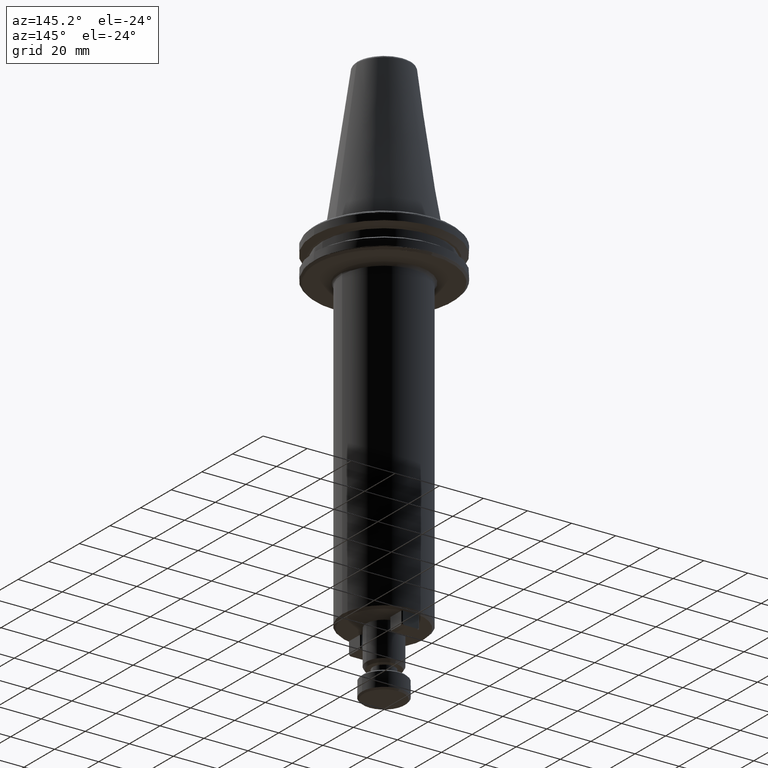
[diagram: clean part render]
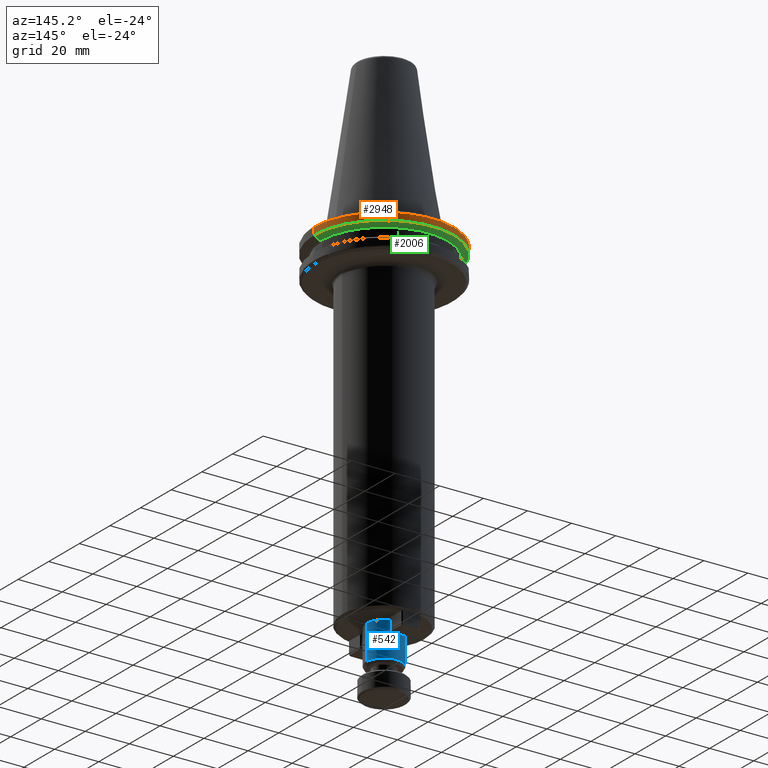
[diagram: same view with three faces highlighted in distinct colors, each labeled with its STEP entity id]
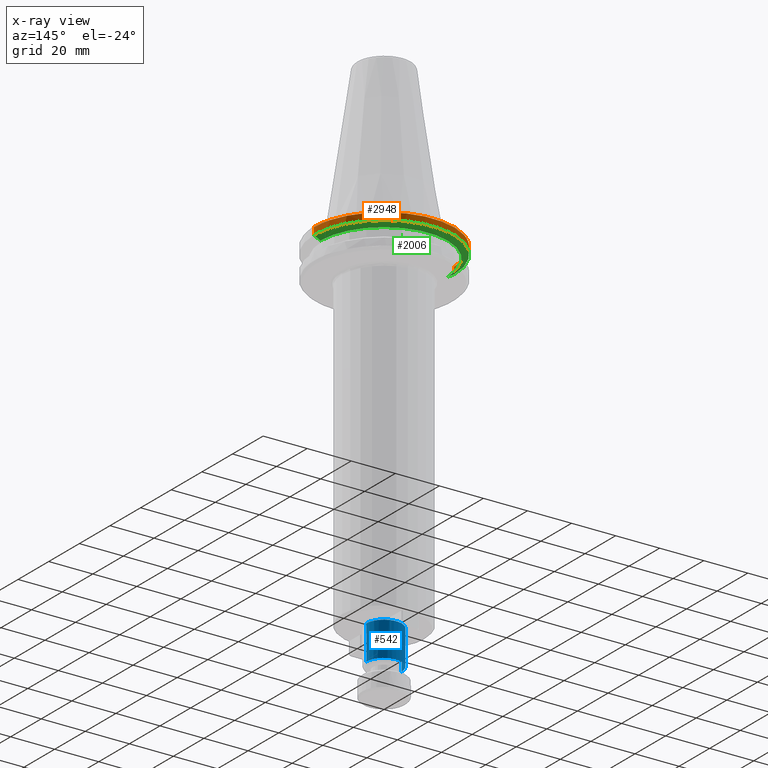
[diagram: x-ray of the same camera — body ghosted, the three highlighted faces saturated]
A machine part, auxiliary view with three faces highlighted in distinct colors.
The next image is the same camera in x-ray (body ghosted, the three faces saturated) — at least one of them is partly hidden behind the body in this view.
Their STEP definitions:

[orange] entity #2948 — the highlighted cylindrical surface (partial cylindrical patch) has radius 31.75 mm, axis along (0, 0, 1).
#28 = CARTESIAN_POINT ( 'NONE',  ( 31.75000000000000000, 0.0000000000000000000, -4.365685424949320200 ) ) ;
#35 = ORIENTED_EDGE ( 'NONE', *, *, #3105, .F. ) ;
#190 = VERTEX_POINT ( 'NONE', #2294 ) ;
#341 = ORIENTED_EDGE ( 'NONE', *, *, #3521, .F. ) ;
#582 = CARTESIAN_POINT ( 'NONE',  ( 0.0000000000000000000, 0.0000000000000000000, -4.365685424949320200 ) ) ;
#747 = CARTESIAN_POINT ( 'NONE',  ( 0.0000000000000000000, 0.0000000000000000000, -4.365685424949236700 ) ) ;
#761 = ORIENTED_EDGE ( 'NONE', *, *, #3818, .F. ) ;
#794 = CIRCLE ( 'NONE', #3931, 31.75000000000000000 ) ;
#831 = VERTEX_POINT ( 'NONE', #1522 ) ;
#875 = VERTEX_POINT ( 'NONE', #3213 ) ;
#890 = CARTESIAN_POINT ( 'NONE',  ( 0.0000000000000000000, 0.0000000000000000000, -4.365685424949320200 ) ) ;
#906 = DIRECTION ( 'NONE',  ( 1.000000000000000000, 0.0000000000000000000, 0.0000000000000000000 ) ) ;
#936 = CARTESIAN_POINT ( 'NONE',  ( 0.0000000000000000000, 0.0000000000000000000, -7.578163357943284800 ) ) ;
#988 = AXIS2_PLACEMENT_3D ( 'NONE', #3435, #1438, #3761 ) ;
#1018 = CARTESIAN_POINT ( 'NONE',  ( 0.0000000000000000000, 0.0000000000000000000, 113.5216080541959500 ) ) ;
#1062 = CIRCLE ( 'NONE', #2954, 31.75000000000000000 ) ;
#1066 = DIRECTION ( 'NONE',  ( 1.000000000000000000, 0.0000000000000000000, 0.0000000000000000000 ) ) ;
#1067 = CIRCLE ( 'NONE', #1709, 31.75000000000000000 ) ;
#1222 = DIRECTION ( 'NONE',  ( 1.000000000000000000, -1.776356839400250500E-015, 0.0000000000000000000 ) ) ;
#1264 = DIRECTION ( 'NONE',  ( 1.000000000000000000, 0.0000000000000000000, -5.463695987328526400E-017 ) ) ;
#1343 = AXIS2_PLACEMENT_3D ( 'NONE', #747, #3053, #1066 ) ;
#1348 = LINE ( 'NONE', #1895, #3891 ) ;
#1378 = VECTOR ( 'NONE', #3896, 1000.000000000000000 ) ;
#1412 = ORIENTED_EDGE ( 'NONE', *, *, #3676, .T. ) ;
#1438 = DIRECTION ( 'NONE',  ( -0.0000000000000000000, -0.0000000000000000000, 1.000000000000000000 ) ) ;
#1463 = VERTEX_POINT ( 'NONE', #3295 ) ;
#1522 = CARTESIAN_POINT ( 'NONE',  ( -31.75000000000000000, 3.888253587292846500E-015, -7.578163357943284800 ) ) ;
#1536 = VERTEX_POINT ( 'NONE', #4087 ) ;
#1582 = CARTESIAN_POINT ( 'NONE',  ( -31.75000000000000000, 3.888253587292846500E-015, 113.5216080541959500 ) ) ;
#1709 = AXIS2_PLACEMENT_3D ( 'NONE', #1878, #4194, #2212 ) ;
#1878 = CARTESIAN_POINT ( 'NONE',  ( 0.0000000000000000000, 0.0000000000000000000, -4.365685424949320200 ) ) ;
#1880 = EDGE_CURVE ( 'NONE', #831, #2431, #1062, .T. ) ;
#1895 = CARTESIAN_POINT ( 'NONE',  ( 31.75000000000000000, 0.0000000000000000000, 113.5216080541959500 ) ) ;
#2212 = DIRECTION ( 'NONE',  ( 1.000000000000000000, 0.0000000000000000000, 0.0000000000000000000 ) ) ;
#2294 = CARTESIAN_POINT ( 'NONE',  ( -31.75000000000000000, 3.888253587292846500E-015, -4.365685424949320200 ) ) ;
#2340 = ORIENTED_EDGE ( 'NONE', *, *, #2782, .T. ) ;
#2391 = ORIENTED_EDGE ( 'NONE', *, *, #3700, .F. ) ;
#2401 = CYLINDRICAL_SURFACE ( 'NONE', #2838, 31.75000000000000000 ) ;
#2431 = VERTEX_POINT ( 'NONE', #3650 ) ;
#2477 = CARTESIAN_POINT ( 'NONE',  ( -30.52966748735166300, 8.717907037342326900, -4.365685424949320200 ) ) ;
#2527 = CIRCLE ( 'NONE', #3483, 31.75000000000000000 ) ;
#2782 = EDGE_CURVE ( 'NONE', #831, #190, #3925, .T. ) ;
#2838 = AXIS2_PLACEMENT_3D ( 'NONE', #1018, #3340, #3006 ) ;
#2881 = DIRECTION ( 'NONE',  ( -0.0000000000000000000, -0.0000000000000000000, 1.000000000000000000 ) ) ;
#2948 = ADVANCED_FACE ( 'NONE', ( #4185 ), #2401, .T. ) ;
#2954 = AXIS2_PLACEMENT_3D ( 'NONE', #936, #3254, #1264 ) ;
#3006 = DIRECTION ( 'NONE',  ( 1.000000000000000000, 0.0000000000000000000, 0.0000000000000000000 ) ) ;
#3053 = DIRECTION ( 'NONE',  ( -0.0000000000000000000, -0.0000000000000000000, -1.000000000000000000 ) ) ;
#3105 = EDGE_CURVE ( 'NONE', #4043, #190, #3756, .T. ) ;
#3138 = ORIENTED_EDGE ( 'NONE', *, *, #1880, .F. ) ;
#3209 = DIRECTION ( 'NONE',  ( -0.0000000000000000000, -0.0000000000000000000, -1.000000000000000000 ) ) ;
#3213 = CARTESIAN_POINT ( 'NONE',  ( -25.80334280669851700, 18.50000000000000000, -4.365685424949320200 ) ) ;
#3254 = DIRECTION ( 'NONE',  ( -0.0000000000000000000, -0.0000000000000000000, -1.000000000000000000 ) ) ;
#3295 = CARTESIAN_POINT ( 'NONE',  ( 30.56296919415017000, 8.600431037885696700, -4.365685424949288200 ) ) ;
#3340 = DIRECTION ( 'NONE',  ( 0.0000000000000000000, 0.0000000000000000000, 1.000000000000000000 ) ) ;
#3352 = EDGE_CURVE ( 'NONE', #4043, #875, #4228, .T. ) ;
#3435 = CARTESIAN_POINT ( 'NONE',  ( 0.0000000000000000000, 0.0000000000000000000, -4.365685424949320200 ) ) ;
#3483 = AXIS2_PLACEMENT_3D ( 'NONE', #890, #3209, #1222 ) ;
#3521 = EDGE_CURVE ( 'NONE', #1536, #875, #1067, .T. ) ;
#3641 = ORIENTED_EDGE ( 'NONE', *, *, #3352, .T. ) ;
#3650 = CARTESIAN_POINT ( 'NONE',  ( 31.75000000000000000, 0.0000000000000000000, -7.578163357943286500 ) ) ;
#3676 = EDGE_CURVE ( 'NONE', #1536, #1463, #2527, .T. ) ;
#3700 = EDGE_CURVE ( 'NONE', #4002, #1463, #794, .T. ) ;
#3756 = CIRCLE ( 'NONE', #988, 31.75000000000000000 ) ;
#3761 = DIRECTION ( 'NONE',  ( 1.000000000000000000, 0.0000000000000000000, 0.0000000000000000000 ) ) ;
#3800 = EDGE_LOOP ( 'NONE', ( #3138, #2340, #35, #3641, #341, #1412, #2391, #761 ) ) ;
#3818 = EDGE_CURVE ( 'NONE', #2431, #4002, #1348, .T. ) ;
#3891 = VECTOR ( 'NONE', #4207, 1000.000000000000000 ) ;
#3896 = DIRECTION ( 'NONE',  ( 0.0000000000000000000, 0.0000000000000000000, 1.000000000000000000 ) ) ;
#3925 = LINE ( 'NONE', #1582, #1378 ) ;
#3931 = AXIS2_PLACEMENT_3D ( 'NONE', #582, #2881, #906 ) ;
#4002 = VERTEX_POINT ( 'NONE', #28 ) ;
#4043 = VERTEX_POINT ( 'NONE', #2477 ) ;
#4087 = CARTESIAN_POINT ( 'NONE',  ( -18.49999999999999600, 25.80334280669851700, -4.365685424949320200 ) ) ;
#4185 = FACE_OUTER_BOUND ( 'NONE', #3800, .T. ) ;
#4194 = DIRECTION ( 'NONE',  ( -0.0000000000000000000, -0.0000000000000000000, 1.000000000000000000 ) ) ;
#4207 = DIRECTION ( 'NONE',  ( 0.0000000000000000000, 0.0000000000000000000, 1.000000000000000000 ) ) ;
#4228 = CIRCLE ( 'NONE', #1343, 31.75000000000000000 ) ;

[blue] entity #542 — the highlighted cylindrical surface (edge-blend (fillet) strip) has radius 8 mm, axis along (0, 0, 1).
#116 = FACE_OUTER_BOUND ( 'NONE', #1511, .T. ) ;
#228 = VERTEX_POINT ( 'NONE', #1651 ) ;
#423 = DIRECTION ( 'NONE',  ( 0.0000000000000000000, 0.0000000000000000000, 1.000000000000000000 ) ) ;
#475 = LINE ( 'NONE', #3603, #3545 ) ;
#537 = EDGE_CURVE ( 'NONE', #3966, #4112, #3056, .T. ) ;
#542 = ADVANCED_FACE ( 'NONE', ( #116 ), #1756, .T. ) ;
#545 = ORIENTED_EDGE ( 'NONE', *, *, #537, .T. ) ;
#613 = AXIS2_PLACEMENT_3D ( 'NONE', #2704, #423, #3060 ) ;
#627 = EDGE_CURVE ( 'NONE', #4112, #3045, #2518, .T. ) ;
#662 = EDGE_CURVE ( 'NONE', #3045, #228, #2229, .T. ) ;
#708 = VERTEX_POINT ( 'NONE', #2940 ) ;
#735 = EDGE_CURVE ( 'NONE', #708, #228, #475, .T. ) ;
#780 = EDGE_CURVE ( 'NONE', #708, #3966, #2542, .T. ) ;
#881 = CARTESIAN_POINT ( 'NONE',  ( 0.0000000000000000000, 0.0000000000000000000, -159.9999999999999700 ) ) ;
#1114 = AXIS2_PLACEMENT_3D ( 'NONE', #3394, #1397, #4238 ) ;
#1206 = DIRECTION ( 'NONE',  ( 1.000000000000000000, 0.0000000000000000000, 0.0000000000000000000 ) ) ;
#1397 = DIRECTION ( 'NONE',  ( 0.0000000000000000000, 0.0000000000000000000, 1.000000000000000000 ) ) ;
#1402 = CARTESIAN_POINT ( 'NONE',  ( -8.000000000000000000, 9.797174393178825700E-016, -159.9999999999999700 ) ) ;
#1511 = EDGE_LOOP ( 'NONE', ( #545, #4049, #1621, #2585, #3591 ) ) ;
#1546 = VECTOR ( 'NONE', #1776, 1000.000000000000000 ) ;
#1621 = ORIENTED_EDGE ( 'NONE', *, *, #662, .T. ) ;
#1651 = CARTESIAN_POINT ( 'NONE',  ( 8.000000000000000000, 0.0000000000000000000, -159.9999999999999700 ) ) ;
#1756 = CYLINDRICAL_SURFACE ( 'NONE', #613, 8.000000000000000000 ) ;
#1776 = DIRECTION ( 'NONE',  ( 0.0000000000000000000, 0.0000000000000000000, 1.000000000000000000 ) ) ;
#1849 = CARTESIAN_POINT ( 'NONE',  ( 0.0000000000000000000, 0.0000000000000000000, -175.6143593539448500 ) ) ;
#1953 = DIRECTION ( 'NONE',  ( 0.0000000000000000000, 0.0000000000000000000, 1.000000000000000000 ) ) ;
#2181 = DIRECTION ( 'NONE',  ( 1.000000000000000000, 0.0000000000000000000, 0.0000000000000000000 ) ) ;
#2229 = CIRCLE ( 'NONE', #3067, 8.000000000000000000 ) ;
#2518 = LINE ( 'NONE', #3755, #1546 ) ;
#2542 = CIRCLE ( 'NONE', #2919, 8.000000000000000000 ) ;
#2585 = ORIENTED_EDGE ( 'NONE', *, *, #735, .F. ) ;
#2704 = CARTESIAN_POINT ( 'NONE',  ( 0.0000000000000000000, 0.0000000000000000000, 82.95681253582424100 ) ) ;
#2919 = AXIS2_PLACEMENT_3D ( 'NONE', #1849, #4163, #2181 ) ;
#2940 = CARTESIAN_POINT ( 'NONE',  ( 8.000000000000000000, 0.0000000000000000000, -175.6143593539448500 ) ) ;
#3045 = VERTEX_POINT ( 'NONE', #1402 ) ;
#3056 = CIRCLE ( 'NONE', #1114, 8.000000000000000000 ) ;
#3060 = DIRECTION ( 'NONE',  ( 1.000000000000000000, 0.0000000000000000000, 0.0000000000000000000 ) ) ;
#3067 = AXIS2_PLACEMENT_3D ( 'NONE', #881, #3193, #1206 ) ;
#3193 = DIRECTION ( 'NONE',  ( -0.0000000000000000000, -0.0000000000000000000, -1.000000000000000000 ) ) ;
#3394 = CARTESIAN_POINT ( 'NONE',  ( 0.0000000000000000000, 0.0000000000000000000, -175.6143593539448500 ) ) ;
#3526 = CARTESIAN_POINT ( 'NONE',  ( -8.000000000000000000, 9.797174393178825700E-016, -175.6143593539448500 ) ) ;
#3545 = VECTOR ( 'NONE', #1953, 1000.000000000000000 ) ;
#3591 = ORIENTED_EDGE ( 'NONE', *, *, #780, .T. ) ;
#3603 = CARTESIAN_POINT ( 'NONE',  ( 8.000000000000000000, 0.0000000000000000000, 82.95681253582424100 ) ) ;
#3755 = CARTESIAN_POINT ( 'NONE',  ( -8.000000000000000000, 9.797174393178825700E-016, 82.95681253582424100 ) ) ;
#3966 = VERTEX_POINT ( 'NONE', #4190 ) ;
#4049 = ORIENTED_EDGE ( 'NONE', *, *, #627, .T. ) ;
#4112 = VERTEX_POINT ( 'NONE', #3526 ) ;
#4163 = DIRECTION ( 'NONE',  ( 0.0000000000000000000, 0.0000000000000000000, 1.000000000000000000 ) ) ;
#4190 = CARTESIAN_POINT ( 'NONE',  ( 9.797174393178805900E-016, 7.999999999999984900, -175.6143593539448500 ) ) ;
#4238 = DIRECTION ( 'NONE',  ( 1.000000000000000000, 0.0000000000000000000, 0.0000000000000000000 ) ) ;

[green] entity #2006 — the highlighted conical surface has half-angle 60 deg.
#331 = CARTESIAN_POINT ( 'NONE',  ( -31.75000000000000000, 3.888253587292846500E-015, -7.578163357943284800 ) ) ;
#630 = ORIENTED_EDGE ( 'NONE', *, *, #1880, .T. ) ;
#649 = CARTESIAN_POINT ( 'NONE',  ( 31.75000000000000000, 0.0000000000000000000, -7.578163357943284800 ) ) ;
#660 = CARTESIAN_POINT ( 'NONE',  ( 0.0000000000000000000, 0.0000000000000000000, -7.578163357943284800 ) ) ;
#831 = VERTEX_POINT ( 'NONE', #1522 ) ;
#918 = LINE ( 'NONE', #331, #4226 ) ;
#936 = CARTESIAN_POINT ( 'NONE',  ( 0.0000000000000000000, 0.0000000000000000000, -7.578163357943284800 ) ) ;
#1062 = CIRCLE ( 'NONE', #2954, 31.75000000000000000 ) ;
#1108 = VECTOR ( 'NONE', #3927, 1000.000000000000000 ) ;
#1218 = LINE ( 'NONE', #649, #1108 ) ;
#1264 = DIRECTION ( 'NONE',  ( 1.000000000000000000, 0.0000000000000000000, -5.463695987328526400E-017 ) ) ;
#1298 = DIRECTION ( 'NONE',  ( 1.000000000000000000, 0.0000000000000000000, 0.0000000000000000000 ) ) ;
#1456 = ORIENTED_EDGE ( 'NONE', *, *, #1717, .T. ) ;
#1514 = VERTEX_POINT ( 'NONE', #2088 ) ;
#1522 = CARTESIAN_POINT ( 'NONE',  ( -31.75000000000000000, 3.888253587292846500E-015, -7.578163357943284800 ) ) ;
#1638 = CARTESIAN_POINT ( 'NONE',  ( 0.0000000000000000000, 0.0000000000000000000, -9.199999999999999300 ) ) ;
#1686 = EDGE_CURVE ( 'NONE', #1983, #1514, #1896, .T. ) ;
#1717 = EDGE_CURVE ( 'NONE', #1514, #831, #918, .T. ) ;
#1880 = EDGE_CURVE ( 'NONE', #831, #2431, #1062, .T. ) ;
#1893 = FACE_OUTER_BOUND ( 'NONE', #3480, .T. ) ;
#1896 = CIRCLE ( 'NONE', #3265, 28.94089653438086500 ) ;
#1932 = EDGE_CURVE ( 'NONE', #1983, #2431, #1218, .T. ) ;
#1969 = DIRECTION ( 'NONE',  ( 1.000000000000000000, 0.0000000000000000000, 0.0000000000000000000 ) ) ;
#1983 = VERTEX_POINT ( 'NONE', #3285 ) ;
#2006 = ADVANCED_FACE ( 'NONE', ( #1893 ), #2645, .T. ) ;
#2088 = CARTESIAN_POINT ( 'NONE',  ( -28.94089653438086500, 3.716245608910637900E-015, -9.199999999999999300 ) ) ;
#2293 = DIRECTION ( 'NONE',  ( -0.8660254037844390400, 1.060575238724907400E-016, 0.4999999999999993300 ) ) ;
#2431 = VERTEX_POINT ( 'NONE', #3650 ) ;
#2645 = CONICAL_SURFACE ( 'NONE', #4055, 31.75000000000000000, 1.047197551196598500 ) ;
#2849 = ORIENTED_EDGE ( 'NONE', *, *, #1686, .T. ) ;
#2953 = DIRECTION ( 'NONE',  ( 0.0000000000000000000, -0.0000000000000000000, 1.000000000000000000 ) ) ;
#2954 = AXIS2_PLACEMENT_3D ( 'NONE', #936, #3254, #1264 ) ;
#3254 = DIRECTION ( 'NONE',  ( -0.0000000000000000000, -0.0000000000000000000, -1.000000000000000000 ) ) ;
#3265 = AXIS2_PLACEMENT_3D ( 'NONE', #1638, #3957, #1969 ) ;
#3285 = CARTESIAN_POINT ( 'NONE',  ( 28.94089653438086500, 0.0000000000000000000, -9.199999999999999300 ) ) ;
#3480 = EDGE_LOOP ( 'NONE', ( #2849, #1456, #630, #3808 ) ) ;
#3650 = CARTESIAN_POINT ( 'NONE',  ( 31.75000000000000000, 0.0000000000000000000, -7.578163357943286500 ) ) ;
#3808 = ORIENTED_EDGE ( 'NONE', *, *, #1932, .F. ) ;
#3927 = DIRECTION ( 'NONE',  ( 0.8660254037844390400, 0.0000000000000000000, 0.4999999999999993300 ) ) ;
#3957 = DIRECTION ( 'NONE',  ( 0.0000000000000000000, -0.0000000000000000000, 1.000000000000000000 ) ) ;
#4055 = AXIS2_PLACEMENT_3D ( 'NONE', #660, #2953, #1298 ) ;
#4226 = VECTOR ( 'NONE', #2293, 1000.000000000000000 ) ;